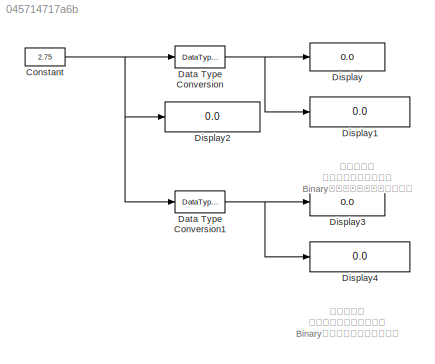
MODEL slx_045714717a6b
KIND model
CONFIG AbsTol = auto
CONFIG FixedStep = 1
CONFIG MaxStep = auto
CONFIG MinStep = auto
CONFIG RelTol = 1e-3
CONFIG SampleTimeConstraint = Unconstrained
CONFIG Solver = FixedStepDiscrete
CONFIG SolverMode = Auto
CONFIG SolverName = FixedStepDiscrete
CONFIG StartTime = 0.0
CONFIG StopTime = 0
BLOCK [Constant] Constant
  AttributesFormatString = DataType = %<OutDataTypeStr>
  OutDataTypeStr = fixdt(1,8,2)
  SampleTime = -1
  Value = 2.75
BLOCK [DataTypeConversion] Data Type Conversion
  AttributesFormatString = DataType = %<OutDataTypeStr>
  OutDataTypeStr = int8
  RndMeth = Nearest
  SaturateOnIntegerOverflow = off
BLOCK [DataTypeConversion] Data Type Conversion1
  AttributesFormatString = DataType = %<OutDataTypeStr>
  ConvertRealWorld = Stored Integer (SI)
  OutDataTypeStr = int8
  RndMeth = Nearest
  SaturateOnIntegerOverflow = off
BLOCK [Display] Display
  AttributesFormatString = Format = %<Format>
  Decimation = 1
  Ports = [1]
BLOCK [Display] Display1
  AttributesFormatString = Format = %<Format>
  Decimation = 1
  Format = binary (Stored Integer)
  Ports = [1]
BLOCK [Display] Display2
  AttributesFormatString = Format = %<Format>
  Decimation = 1
  Format = binary (Stored Integer)
  Ports = [1]
BLOCK [Display] Display3
  AttributesFormatString = Format = %<Format>
  Decimation = 1
  Ports = [1]
BLOCK [Display] Display4
  AttributesFormatString = Format = %<Format>
  Decimation = 1
  Format = binary (Stored Integer)
  Ports = [1]
ANNOTATION (root): 変換前後で 実数データは保存され Binaryデータは保存されていない
ANNOTATION (root): 変換前後で 実数データは保存されず Binaryデータが保存されている
NET Constant:1 -> Data Type Conversion1:1, Data Type Conversion:1, Display2:1
NET Data Type Conversion1:1 -> Display3:1, Display4:1
NET Data Type Conversion:1 -> Display1:1, Display:1
note: NET lines group one-source signal fan-out (src -> all destinations, sorted); 1:1 wires keep LINE
